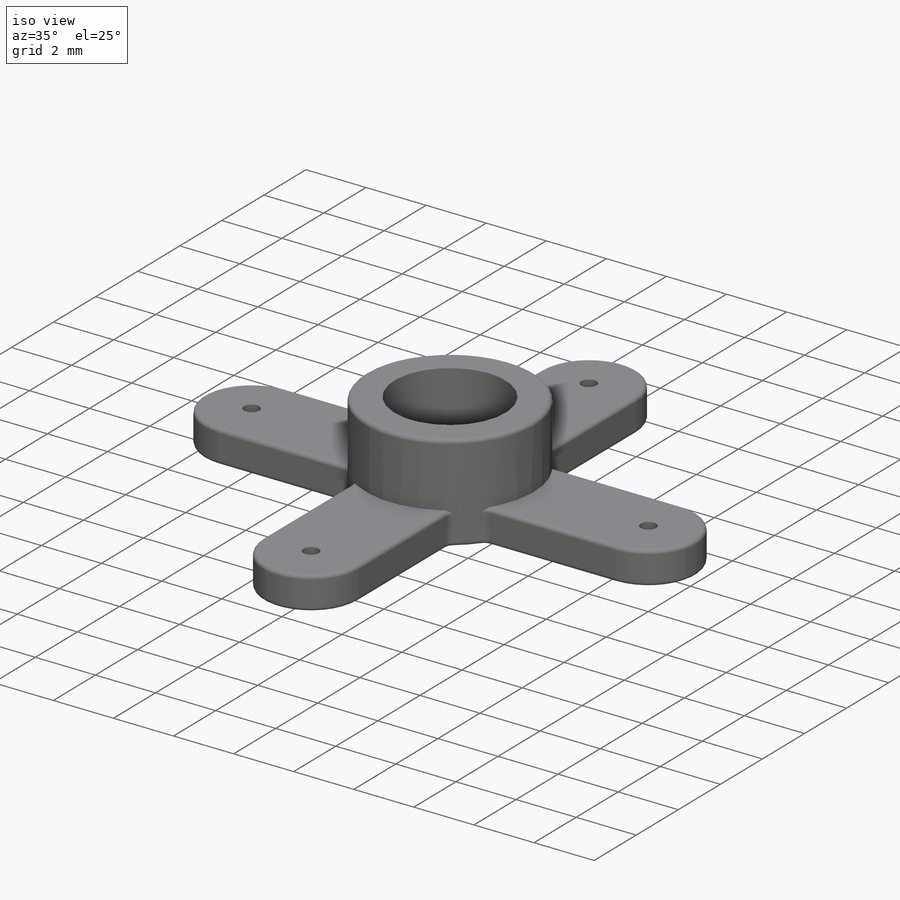
[diagram: iso view]
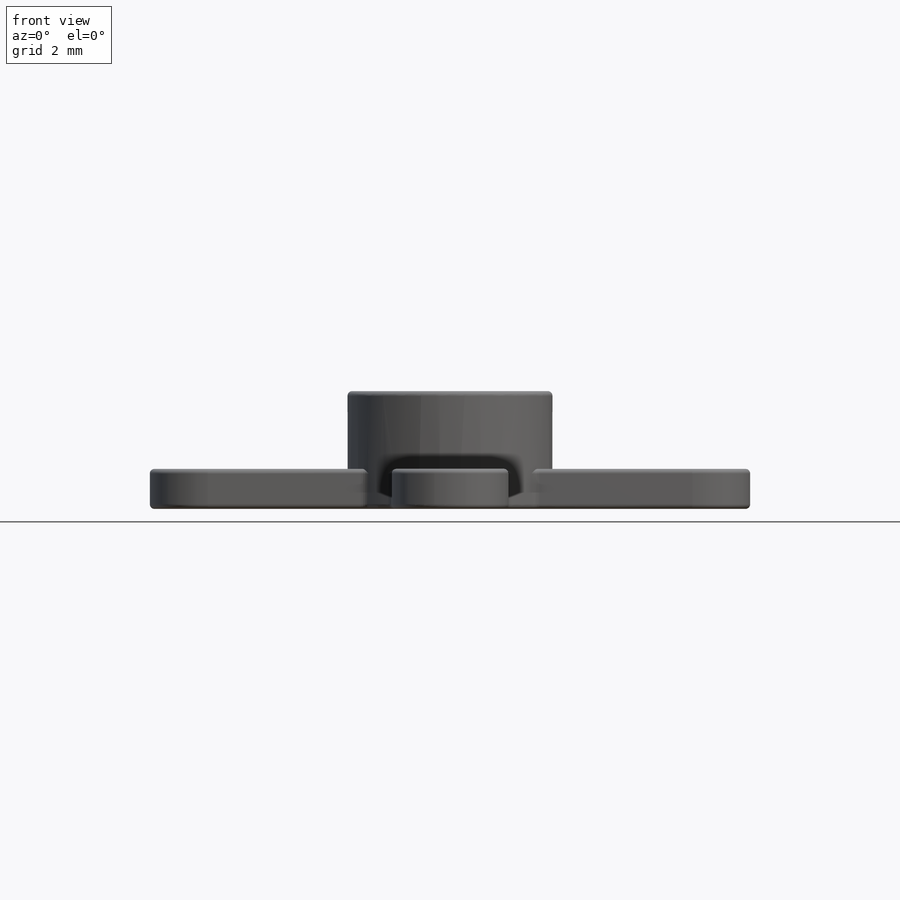
[diagram: front view]
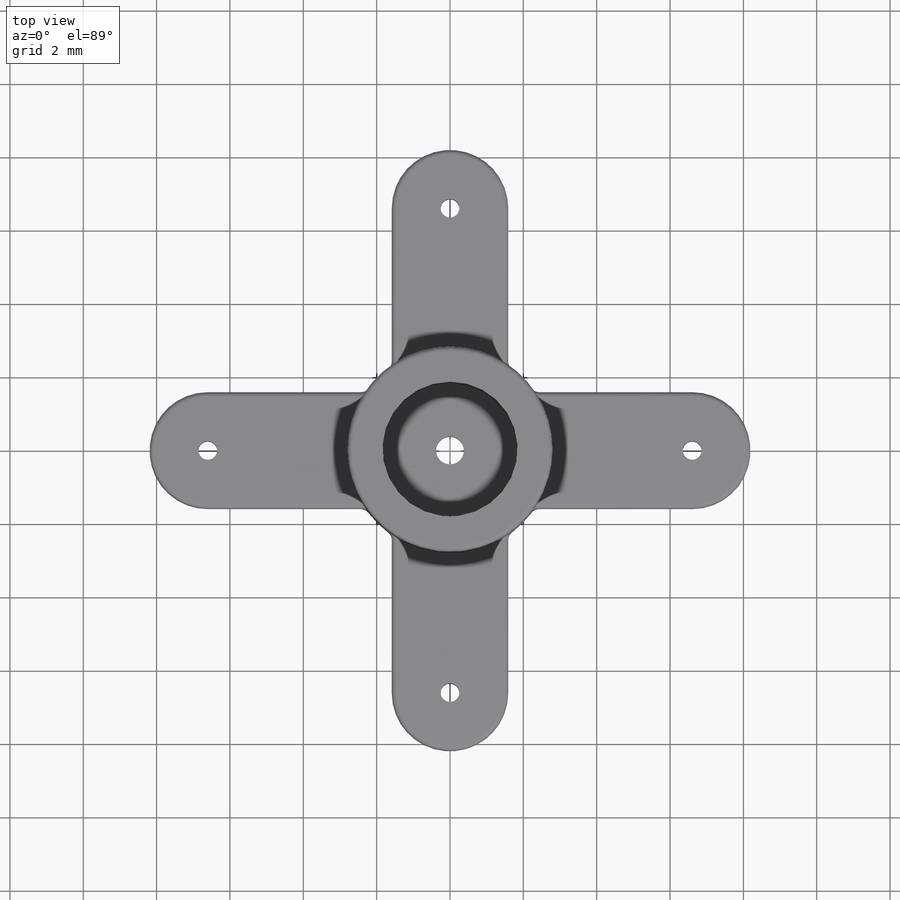
[diagram: top view]
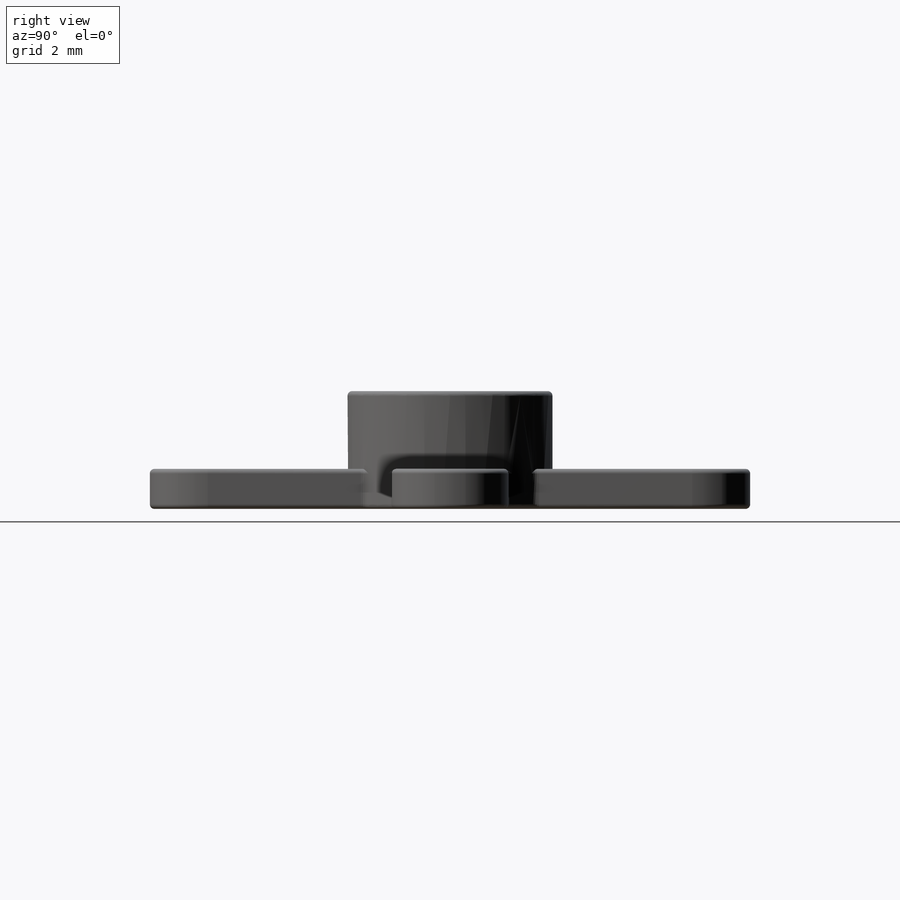
[diagram: right view]
SOLIDWORKS PART (.sldprt)
format: sldprt  version: not decoded by parser v0  size: 317,952 bytes
history: native  units: mm
features: sketch x4, extrude x2, cut_extrude x2, material x1, fillet x1 (+11 scaffold rows collapsed)
feature tree (21):
  scaffold x11  (default folders/planes/origin — collapsed)
  material  "Material <not specified>"
  sketch  "Sketch1"  dims[c1.D1=5.588mm c1.D2=3.683mm c2.D1=~13.590367mm]
  extrude  "Boss-Extrude1"  Depth=3.2131mm
  sketch  "Sketch2"  dims[c1.D2=0.508mm c1.D3=3.175mm c1.D5=0.254mm c1.D1=6.604mm c1.D4=~2.818572mm c2.D4=4.0]
  extrude  "Boss-Extrude2"  Depth=1.0922mm
  fillet  "Fillet2"  Radius=0.127mm
  sketch  "Sketch3"  dims[D1=~0.421388mm]
  cut_extrude  "Cut-Extrude1"  [1 undecoded]
  sketch  "Sketch4"  dims[D1=3.302mm]
  cut_extrude  "Cut-Extrude2"  Depth=0.127mm
decode coverage: 8 of 9 modeling features carry decoded parameters
note: ~ marks probable driven/reference dimensions
note: 1 parameter value undecoded
note: suppression state not decoded; provenance and decode notes live in map.json
